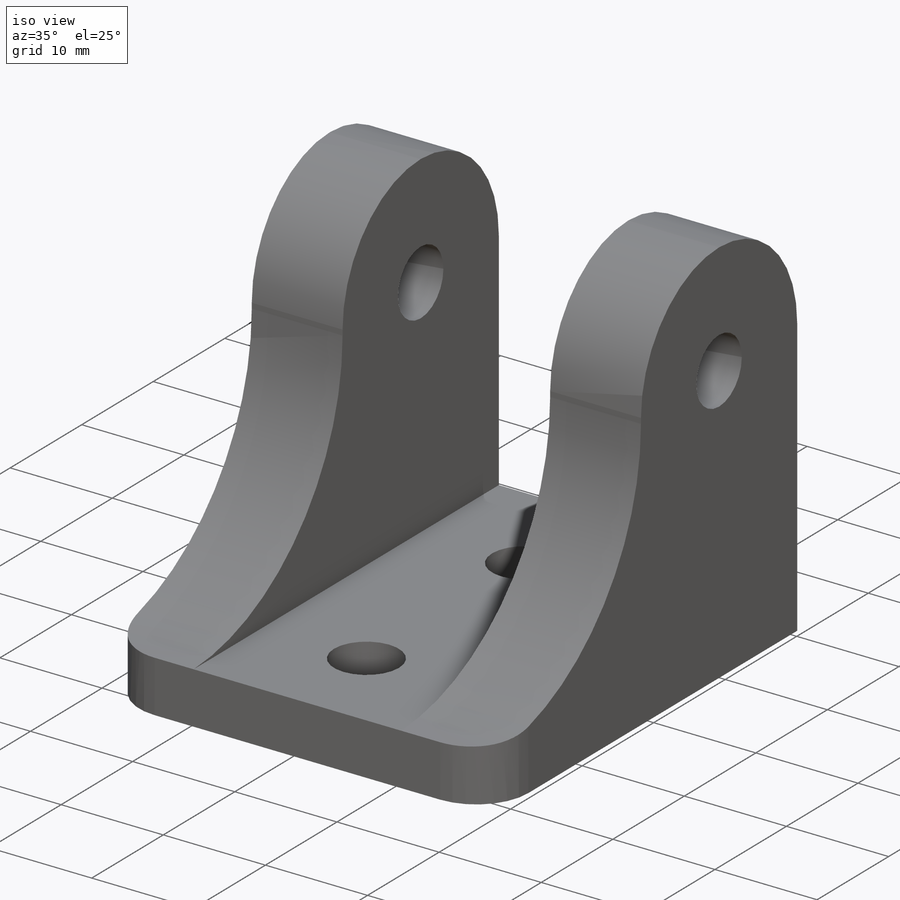
[diagram: iso view]
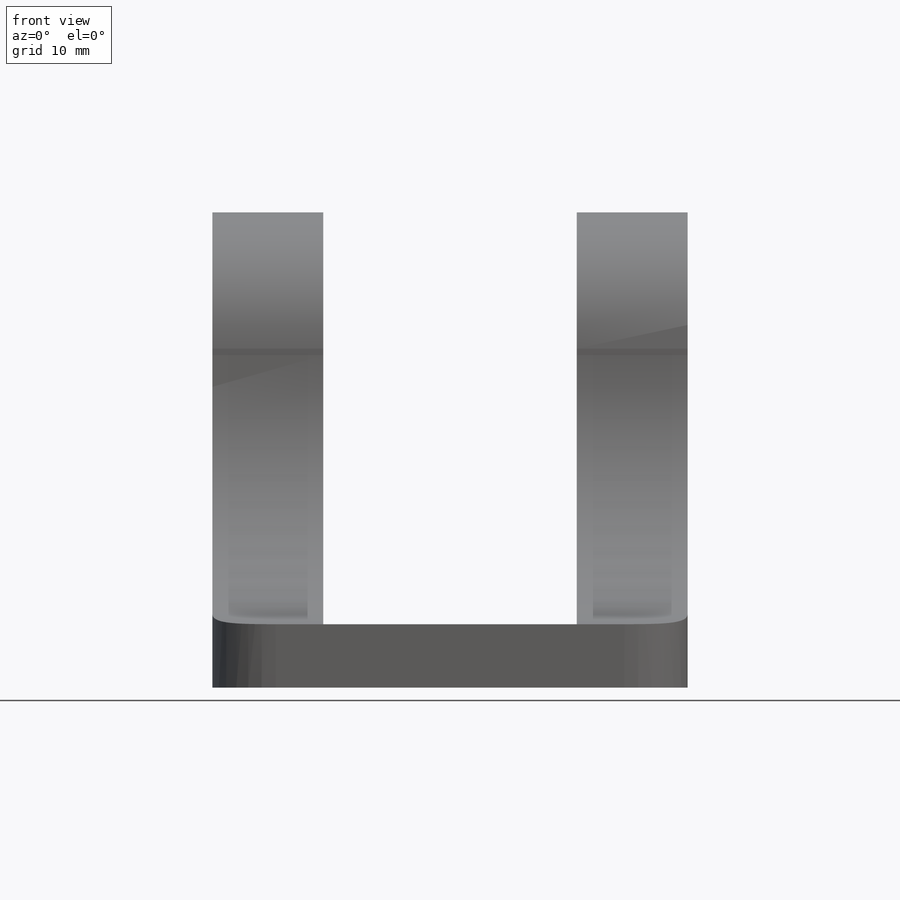
[diagram: front view]
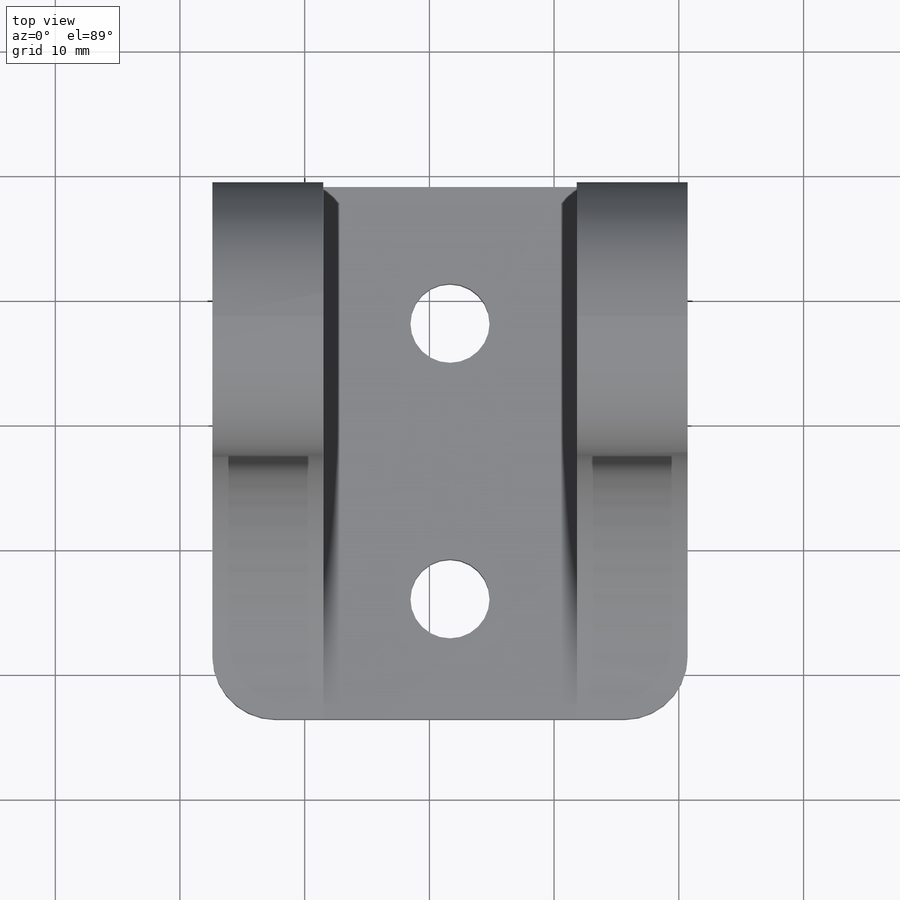
[diagram: top view]
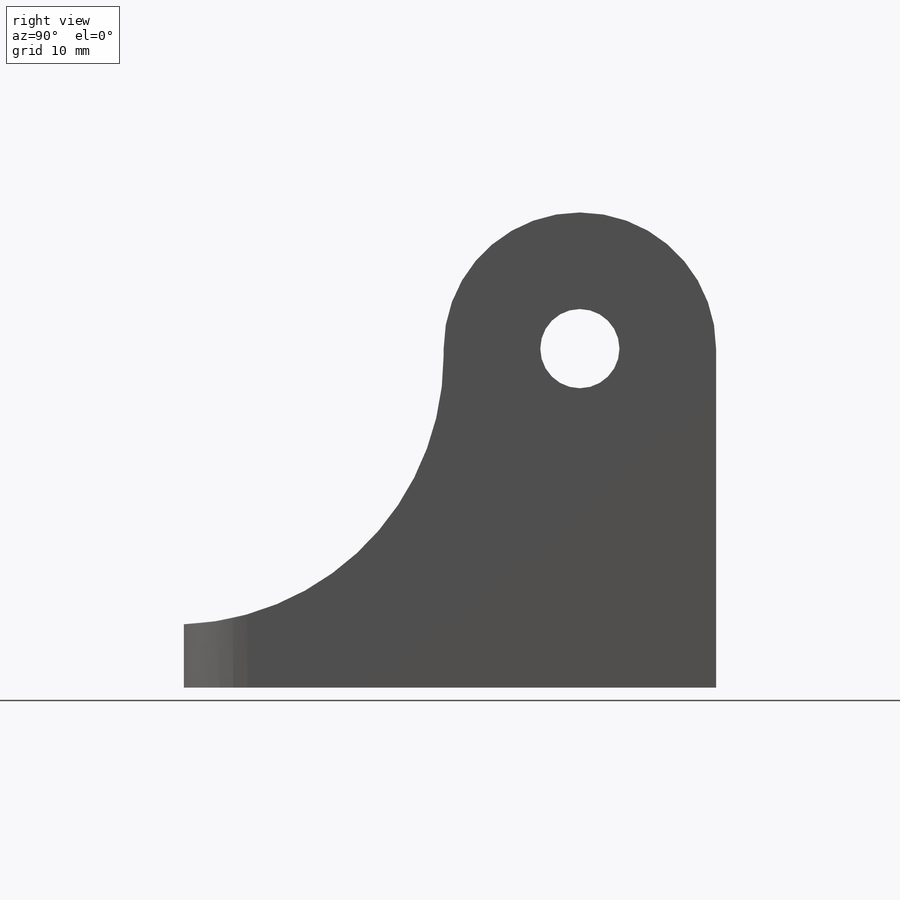
[diagram: right view]
SOLIDWORKS PART (.sldprt)
format: sldprt  version: not decoded by parser v0  size: 259,072 bytes
history: native  units: mm
features: sketch x4, fillet x3, extrude x2, material x1, hole x1 (+12 scaffold rows collapsed)
feature tree (23):
  scaffold x12  (default folders/planes/origin — collapsed)
  material  "Material <not specified>"
  sketch  "Sketch1"  dims[D1=38.1mm D2=42.672mm]
  extrude  "Boss-Extrude1"  Depth=5.08mm
  sketch  "Sketch2"  dims[D1=8.89mm D2=21.844mm D3=~18.139969mm]
  extrude  "Boss-Extrude2"  Depth=33.02mm
  fillet  "Fillet1"  Radius=10.922mm
  fillet  "Fillet2"  Radius=21.59mm
  fillet  "Fillet3"  Radius=5.08mm
  hole  "1 (1) Diameter Hole1"  Diameter=6.35mm Depth=50.8mm
  sketch  "3DSketch1"  dims[c1.D1=~8.659899mm c1.D3=~8.659899mm c1.D2=10.922mm c2.D3=~23.092679mm c2.D4=~23.092679mm c2.D1=33.02mm c3.D3=27.178mm c3.D4=10.922mm c3.D5=10.922mm]
  sketch  "Sketch4"  dims[hole-wizard template sketch: 47 standard entries collapsed; hole parameters kept: c15.Hole Depth=50.8mm c15.D3=~14.816244mm c15.Drill Angle=118.0deg]
decode coverage: 10 of 10 modeling features carry decoded parameters
note: ~ marks probable driven/reference dimensions
note: suppression state not decoded; provenance and decode notes live in map.json
